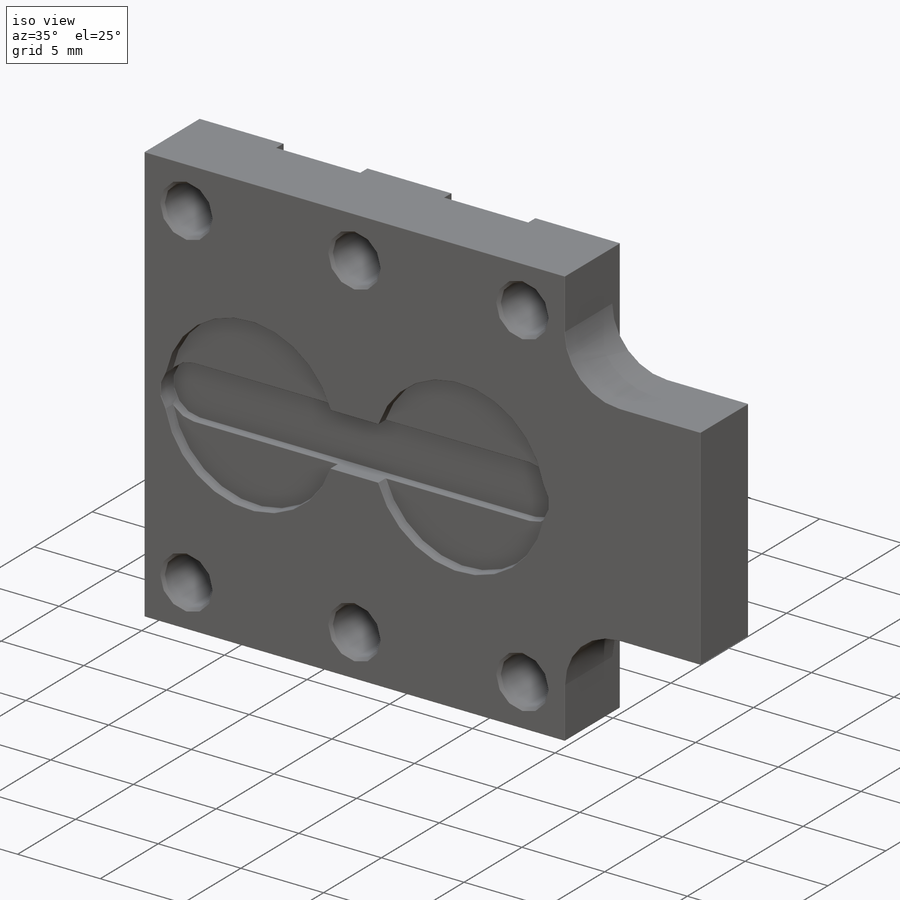
[diagram: iso view]
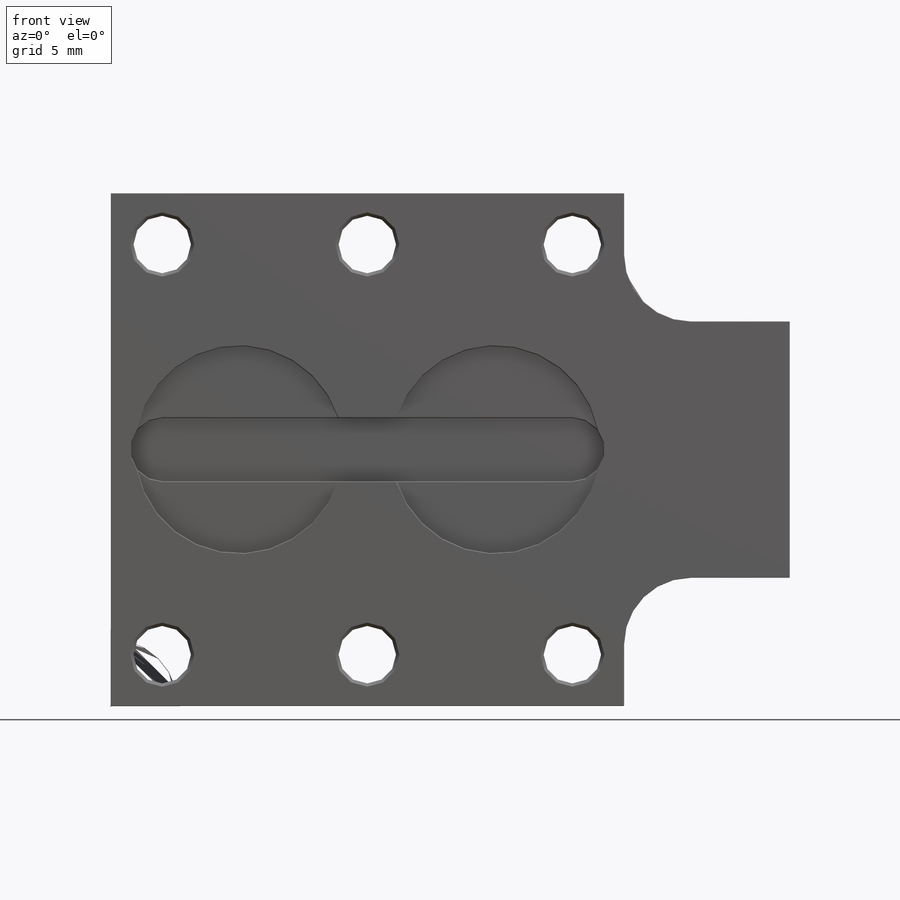
[diagram: front view]
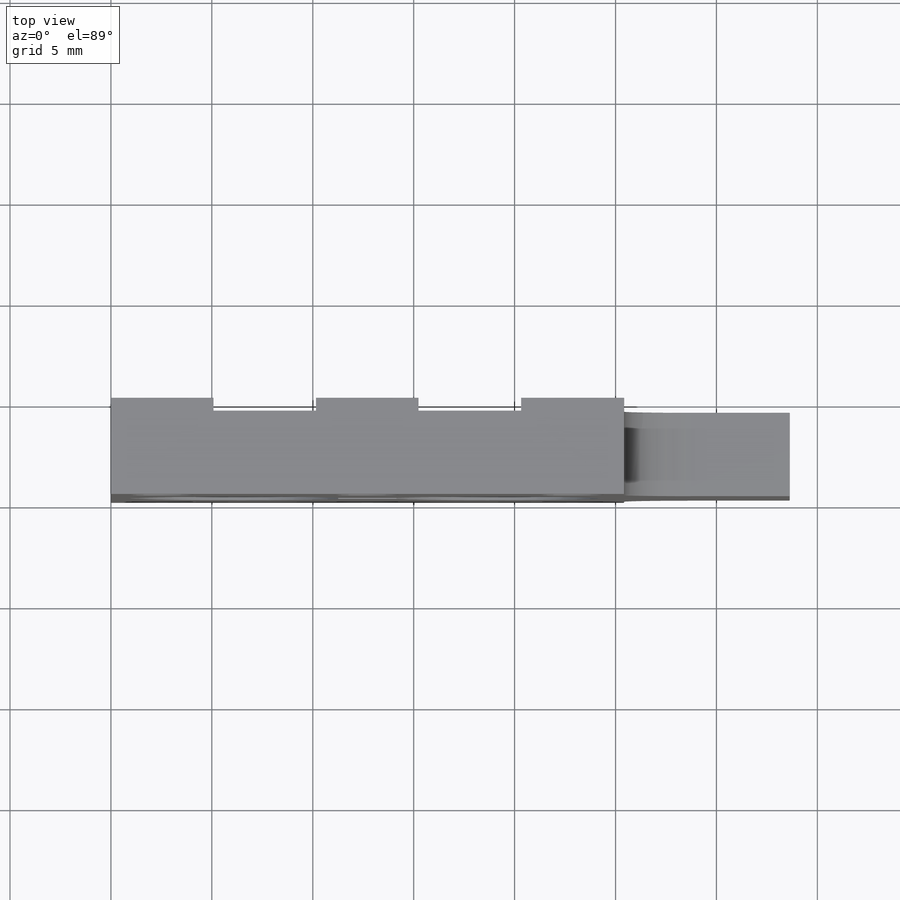
[diagram: top view]
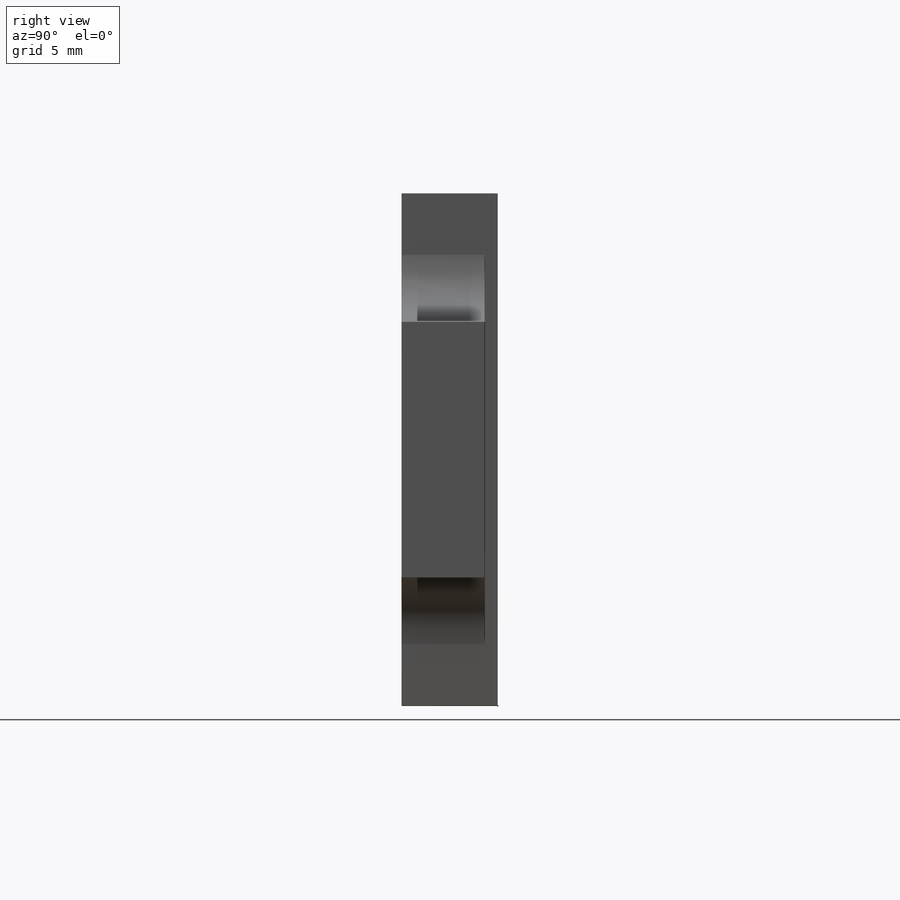
[diagram: right view]
SOLIDWORKS PART (.sldprt)
format: sldprt  version: not decoded by parser v0  size: 588,288 bytes
history: native  units: mm
features: sketch x8, cut_extrude x5, fillet x4, hole x2, material x1, extrude x1 + 1 further entry (+13 scaffold rows collapsed)
feature tree (35):
  scaffold x13  (default folders/planes/origin — collapsed)
  material  "410 SSTL"
  "Origin"  ID=-1
  sketch  "Sketch1"  dims[c1.D1=~31.665215mm c1.D2=~32.10258mm c2.D1=25.4mm c2.D2=33.6296mm]
  extrude  "Extrude1"  Depth=4.7625mm
  fillet  "Fillet1"  Radius=0.0254mm
  fillet  "Fillet2"  Radius=0.0254mm
  sketch  "Sketch3"  dims[c1.D1=~27.684526mm c1.D2=~4.591344mm c2.D1=~28.366677mm c2.D2=~6.46399mm c3.D1=~28.366677mm c3.D2=~7.086507mm c4.D1=~28.366677mm c5.D1=90.0deg c6.D1=5.08mm c6.D2=~28.366677mm c6.D3=~5.912557mm c7.D2=5.08mm c7.D3=5.08mm c7.D4=5.08mm c8.D2=5.08mm c8.D3=5.08mm]
  cut_extrude  "Extrude3"  Depth=0.635mm
  sketch  "Sketch4"  dims[c1.D2=1.5875mm c1.D1=2.54mm c2.D2=2.54mm c2.D3=3.175mm c3.D2=20.32mm]
  cut_extrude  "Extrude4"  Depth=1.143mm
  sketch  "Sketch5"  dims[c1.D1=10.3124mm c1.D2=10.3124mm c2.D1=~0.191274mm c2.D3=6.35mm c2.D4=6.35mm c2.D2=12.7mm]
  cut_extrude  "Extrude5"  Depth=0.635mm
  fillet  "Fillet4"  Radius=0.0254mm
  hole  "#4-40 Tapped Hole1"  [1 undecoded]
  sketch  "Sketch7"  dims[D1=0.0mm D2=2.54mm D3=12.7mm D4=22.86mm D5=0.0mm D6=2.54mm D7=22.86mm]
  hole  "AlignGroup2"  Diameter=2.8448mm Depth=4.7625mm
  sketch  "Sketch6"  dims[hole-wizard template sketch: 46 standard entries collapsed; hole parameters kept: c15.Thread Major Dia.=2.8448mm c15.Thru Tap Drill Depth=4.7625mm c15.Near C'Sink Dia.=3.175mm c15.D4=~3.666174mm c15.Near C'Sink Angle=90.0deg c15.Far C'Sink Dia.=3.5306mm c15.D6=~9.919017mm c15.Far C'Sink Angle=90.0deg]
  sketch  "Sketch8"  dims[D3=3.302mm D1=12.7mm D2=25.4mm]
  cut_extrude  "Cut-Extrude1"  [1 undecoded]
  sketch  "Sketch9"  dims[D1=19.558mm]
  cut_extrude  "Cut-Extrude2"  [1 undecoded]
  fillet  "Fillet5"  Radius=0.0254mm
decode coverage: 17 of 20 modeling features carry decoded parameters; 1 rows unclassified (native names shown)
note: ~ marks probable driven/reference dimensions
note: 3 parameter values undecoded
summary: no parameter record found for 3 features
note: suppression state not decoded; provenance and decode notes live in map.json
